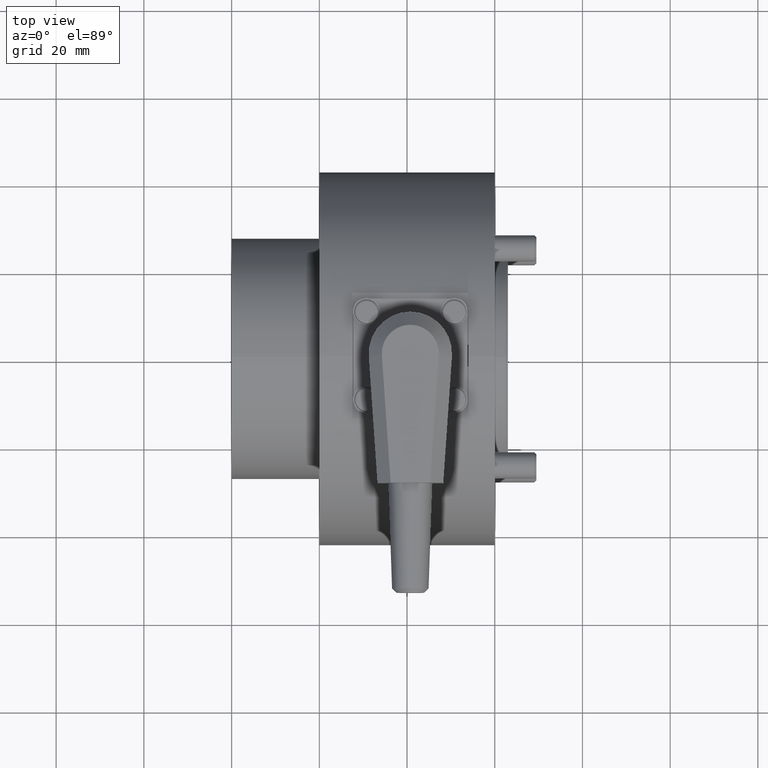
[diagram: clean part render]
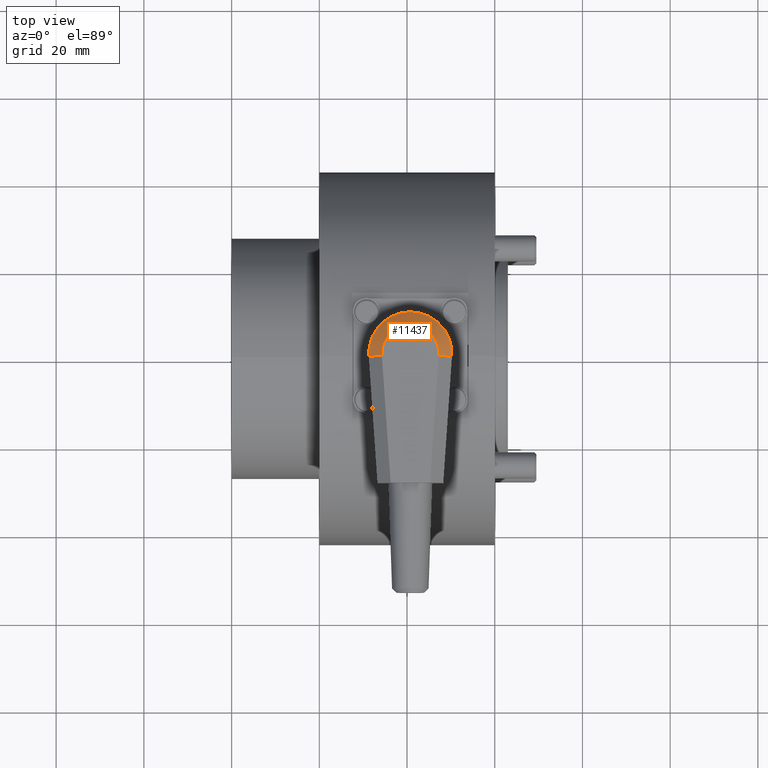
[diagram: same view with one face highlighted and labeled with its STEP entity id]
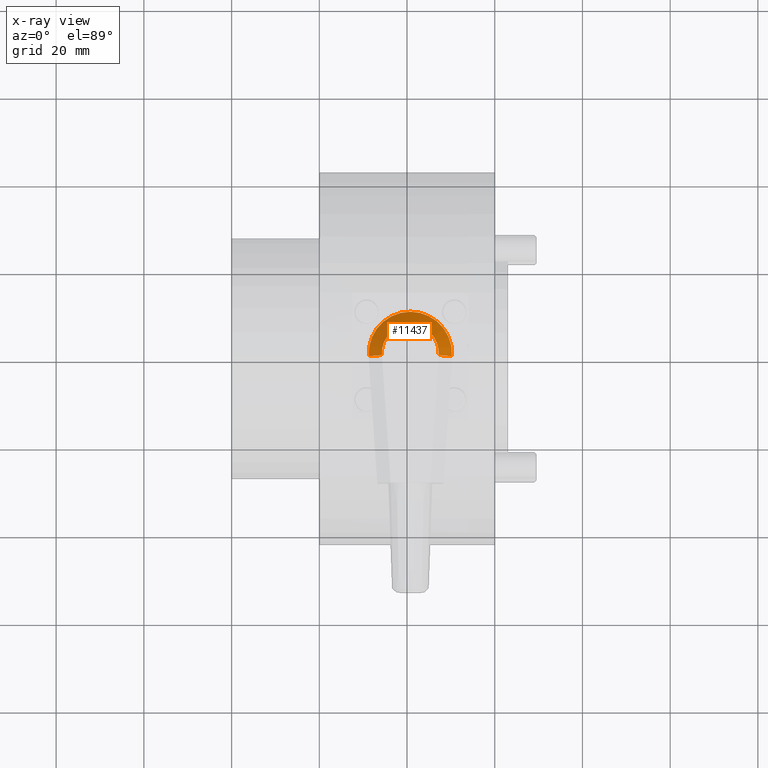
[diagram: x-ray of the same camera — body ghosted, the highlighted face saturated]
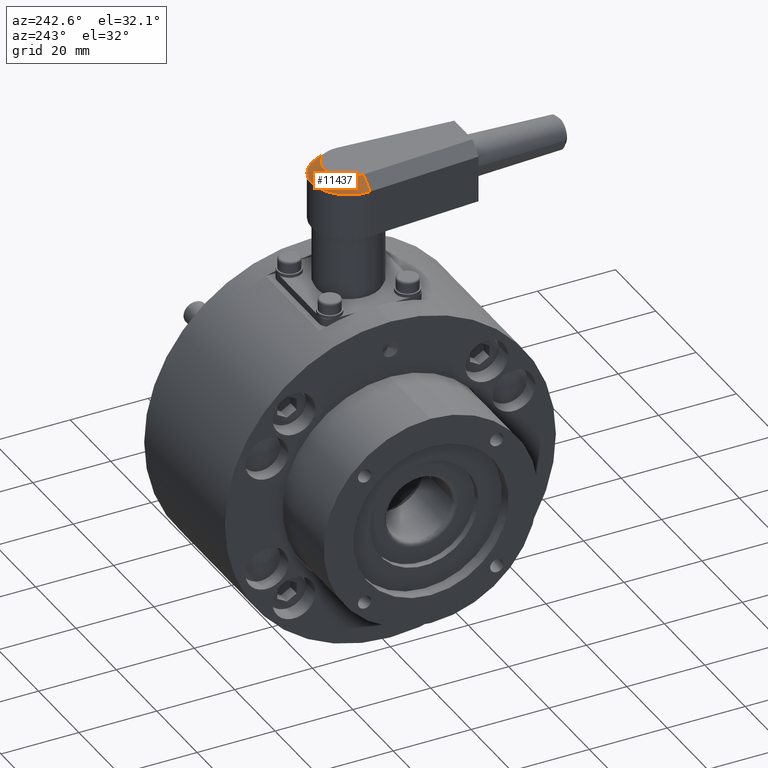
[diagram: same view with one face highlighted and labeled with its STEP entity id]
A machine part, top view. The second image highlights one B-rep face of the part: STEP entity #11437.
The next image is the same camera in x-ray: the body ghosted, the highlighted face saturated — about 0% of this face is hidden behind the body in this view.
A second angle (auxiliary view) of the same face is appended — the face is thin or edge-on in the first view.
In plain terms, the highlighted conical surface has half-angle 45 deg.
Its self-contained STEP definition (entity closure, byte-faithful):
#11380=CARTESIAN_POINT('',(-75.797040037090625,-102.965427614952080,14.500000000000000));
#11381=VERTEX_POINT('',#11380);
#11388=CARTESIAN_POINT('',(-78.790015635733994,-103.170603310212240,11.500000000000000));
#11389=VERTEX_POINT('',#11388);
#11390=CARTESIAN_POINT('',(-75.797040037090625,-102.965427614952080,14.500000000000000));
#11391=DIRECTION('',(-0.705451113908862,-0.048360375151043,-0.707106781186545));
#11392=VECTOR('',#11391,4.242640687119300);
#11393=LINE('',#11390,#11392);
#11394=EDGE_CURVE('',#11381,#11389,#11393,.T.);
#11405=CARTESIAN_POINT('',(-69.312259573363391,-102.520880275221710,13.0));
#11406=DIRECTION('',(0.0,0.0,-1.0));
#11407=DIRECTION('',(1.0,0.0,0.0));
#11408=AXIS2_PLACEMENT_3D('',#11405,#11406,#11407);
#11409=CONICAL_SURFACE('',#11408,8.0,45.000000000000007);
#11410=CARTESIAN_POINT('',(-62.827479109636137,-102.965427614952060,14.500000000000000));
#11411=VERTEX_POINT('',#11410);
#11412=CARTESIAN_POINT('',(-59.834503510992789,-103.170603310212230,11.500000000000000));
#11413=VERTEX_POINT('',#11412);
#11414=CARTESIAN_POINT('',(-62.827479109636137,-102.965427614952060,14.500000000000000));
#11415=DIRECTION('',(0.705451113908859,-0.048360375151043,-0.707106781186548));
#11416=VECTOR('',#11415,4.242640687119285);
#11417=LINE('',#11414,#11416);
#11418=EDGE_CURVE('',#11411,#11413,#11417,.T.);
#11419=ORIENTED_EDGE('',*,*,#11418,.T.);
#11420=CARTESIAN_POINT('',(-69.312259573363391,-102.520880275221710,11.500000000000000));
#11421=DIRECTION('',(0.0,0.0,1.0));
#11422=DIRECTION('',(1.0,0.0,0.0));
#11423=AXIS2_PLACEMENT_3D('',#11420,#11421,#11422);
#11424=CIRCLE('',#11423,9.500000000000000);
#11425=EDGE_CURVE('',#11413,#11389,#11424,.T.);
#11426=ORIENTED_EDGE('',*,*,#11425,.T.);
#11427=ORIENTED_EDGE('',*,*,#11394,.F.);
#11428=CARTESIAN_POINT('',(-69.312259573363391,-102.520880275221710,14.500000000000000));
#11429=DIRECTION('',(0.0,0.0,-1.0));
#11430=DIRECTION('',(1.0,0.0,0.0));
#11431=AXIS2_PLACEMENT_3D('',#11428,#11429,#11430);
#11432=CIRCLE('',#11431,6.500000000000000);
#11433=EDGE_CURVE('',#11381,#11411,#11432,.T.);
#11434=ORIENTED_EDGE('',*,*,#11433,.T.);
#11435=EDGE_LOOP('',(#11419,#11426,#11427,#11434));
#11436=FACE_OUTER_BOUND('',#11435,.T.);
#11437=ADVANCED_FACE('',(#11436),#11409,.T.);